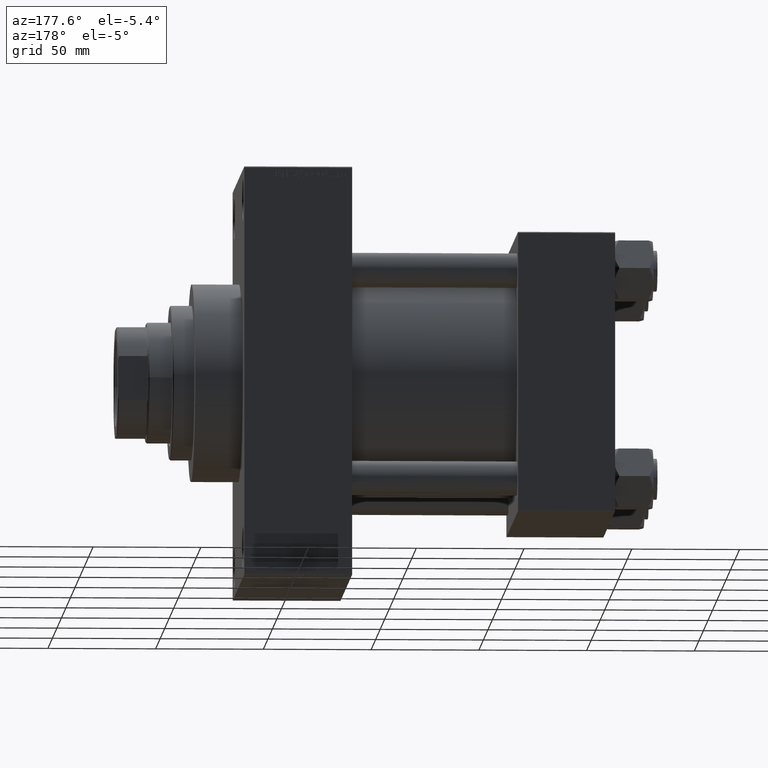
[diagram: clean part render]
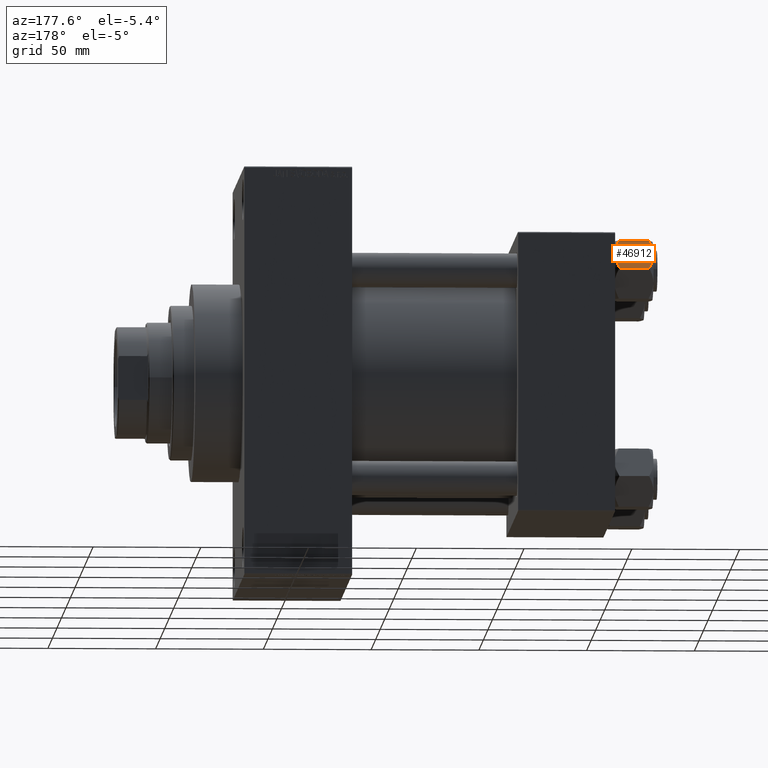
[diagram: same view with one face highlighted and labeled with its STEP entity id]
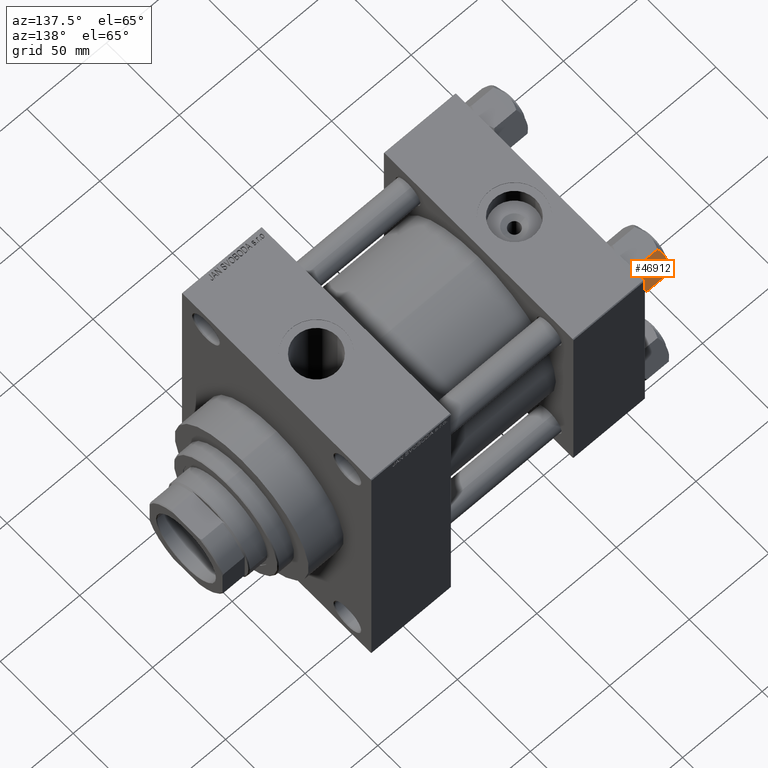
[diagram: same view with one face highlighted and labeled with its STEP entity id]
A machine part, auxiliary view. The second image highlights one B-rep face of the part: STEP entity #46912.
A second angle (auxiliary view) of the same face is appended — the face is thin or edge-on in the first view.
In plain terms, the highlighted planar face has unit normal (0, -0.866, -0.5).
Its self-contained STEP definition (entity closure, byte-faithful):
#999 = CARTESIAN_POINT ( 'NONE',  ( 15.62000000000000455, -1.379485931020374819E-15, -18.00000000000000000 ) ) ;
#1165 = B_SPLINE_CURVE_WITH_KNOTS ( 'NONE', 3,
 ( #10474, #3217, #11194, #29776, #25205, #7562, #39914, #7092 ),
 .UNSPECIFIED., .F., .F.,
 ( 4, 2, 2, 4 ),
 ( 4.472842641901889415E-07, 0.003945636373369311792, 0.005918230917921871344, 0.007890825462474430896 ),
 .UNSPECIFIED. ) ;
#2444 = ORIENTED_EDGE ( 'NONE', *, *, #21479, .F. ) ;
#2679 = FACE_OUTER_BOUND ( 'NONE', #36958, .T. ) ;
#2695 = VECTOR ( 'NONE', #24850, 1000.000000000000114 ) ;
#3041 = CARTESIAN_POINT ( 'NONE',  ( 9.439480280627259745, -10.70497417113492666, -17.26828031537187869 ) ) ;
#3077 = CARTESIAN_POINT ( 'NONE',  ( 15.62000000000000455, -1.379485931020374819E-15, -1.999999999999998224 ) ) ;
#3217 = CARTESIAN_POINT ( 'NONE',  ( 14.92760668674625535, -1.199260397376455067, -16.58801072835992585 ) ) ;
#3822 = CARTESIAN_POINT ( 'NONE',  ( 11.38181071908714515, -7.340759166634874155, 7.741881137904304113E-16 ) ) ;
#4502 = EDGE_CURVE ( 'NONE', #23682, #36595, #29206, .T. ) ;
#4707 = VERTEX_POINT ( 'NONE', #4918 ) ;
#4918 = CARTESIAN_POINT ( 'NONE',  ( 7.810000000000002274, -13.52731680711293372, -16.00000000000000000 ) ) ;
#6608 = CARTESIAN_POINT ( 'NONE',  ( 14.30591678195076355, -2.276058899034900662, -0.9473872146228133895 ) ) ;
#7092 = CARTESIAN_POINT ( 'NONE',  ( 11.71500000000000341, -6.763658403556471299, -18.00000000000000000 ) ) ;
#7321 = CARTESIAN_POINT ( 'NONE',  ( 15.62000000000000455, -1.379485931020374819E-15, -1.999999999999998224 ) ) ;
#7562 = CARTESIAN_POINT ( 'NONE',  ( 12.38621571200405569, -5.601078687526932498, -17.94910618364698252 ) ) ;
#7788 = LINE ( 'NONE', #7321, #7874 ) ;
#7874 = VECTOR ( 'NONE', #22046, 1000.000000000000114 ) ;
#9008 = CARTESIAN_POINT ( 'NONE',  ( 11.71500000000000341, -6.763658403556471299, -18.00000000000000000 ) ) ;
#9494 = AXIS2_PLACEMENT_3D ( 'NONE', #28280, #39365, #47336 ) ;
#9514 = CARTESIAN_POINT ( 'NONE',  ( 12.37702203890362540, -5.617002596445055396, 1.097754699641572845E-15 ) ) ;
#9751 = CARTESIAN_POINT ( 'NONE',  ( 13.99051971937274352, -2.822342635978011938, -0.7317196846281139866 ) ) ;
#10047 = VECTOR ( 'NONE', #22850, 1000.000000000000114 ) ;
#10285 = EDGE_CURVE ( 'NONE', #15701, #25287, #7788, .T. ) ;
#10471 = CARTESIAN_POINT ( 'NONE',  ( 13.02784502466562699, -4.489744118371590709, -0.1971866459924545845 ) ) ;
#10474 = CARTESIAN_POINT ( 'NONE',  ( 15.52647173767732980, -0.1619957022865074481, -16.00000000000000000 ) ) ;
#10826 = ORIENTED_EDGE ( 'NONE', *, *, #15098, .F. ) ;
#11194 = CARTESIAN_POINT ( 'NONE',  ( 14.31545111198821729, -2.259544954993898624, -17.08577173959729834 ) ) ;
#11800 = DIRECTION ( 'NONE',  ( -0.000000000000000000, -0.000000000000000000, 1.000000000000000000 ) ) ;
#14633 = CARTESIAN_POINT ( 'NONE',  ( 7.903528262322674358, -13.36532110482643176, -16.00000000000000000 ) ) ;
#14826 = LINE ( 'NONE', #23436, #46941 ) ;
#15098 = EDGE_CURVE ( 'NONE', #25287, #46596, #16040, .T. ) ;
#15528 = ORIENTED_EDGE ( 'NONE', *, *, #10285, .F. ) ;
#15696 = VERTEX_POINT ( 'NONE', #17250 ) ;
#15701 = VERTEX_POINT ( 'NONE', #39929 ) ;
#16040 = B_SPLINE_CURVE_WITH_KNOTS ( 'NONE', 3,
 ( #29181, #33264, #21464, #32311, #47051, #36417, #3822, #17836 ),
 .UNSPECIFIED., .F., .F.,
 ( 4, 2, 2, 4 ),
 ( 4.472842641876105202E-07, 0.003945636373369308322, 0.005918230917921867007, 0.007890825462474425692 ),
 .UNSPECIFIED. ) ;
#17250 = CARTESIAN_POINT ( 'NONE',  ( 15.52647173767732980, -0.1619957022865074481, -16.00000000000000000 ) ) ;
#17836 = CARTESIAN_POINT ( 'NONE',  ( 11.71500000000000341, -6.763658403556471299, 0.000000000000000000 ) ) ;
#18190 = CARTESIAN_POINT ( 'NONE',  ( 15.52647173767732980, -0.1619957022865074481, -2.000000000000000000 ) ) ;
#21464 = CARTESIAN_POINT ( 'NONE',  ( 9.114548888011784200, -11.26777185211904353, -0.9142282604026938930 ) ) ;
#21479 = EDGE_CURVE ( 'NONE', #28767, #15696, #28702, .T. ) ;
#21643 = CARTESIAN_POINT ( 'NONE',  ( 8.506059550806615022, -12.32170630002230638, -16.56553707812499709 ) ) ;
#21743 = CARTESIAN_POINT ( 'NONE',  ( 7.903528262322674358, -13.36532110482643176, -16.00000000000000000 ) ) ;
#22046 = DIRECTION ( 'NONE',  ( 0.5000000000000002220, 0.8660254037844384856, -0.000000000000000000 ) ) ;
#22850 = DIRECTION ( 'NONE',  ( 0.5000000000000002220, 0.8660254037844384856, -0.000000000000000000 ) ) ;
#23223 = EDGE_CURVE ( 'NONE', #4707, #15701, #37399, .T. ) ;
#23436 = CARTESIAN_POINT ( 'NONE',  ( 15.62000000000000455, -1.379485931020374819E-15, -16.00000000000000000 ) ) ;
#23506 = ORIENTED_EDGE ( 'NONE', *, *, #37232, .F. ) ;
#23682 = VERTEX_POINT ( 'NONE', #39462 ) ;
#23821 = CARTESIAN_POINT ( 'NONE',  ( 11.71500000000000341, -6.763658403556471299, 0.000000000000000000 ) ) ;
#24773 = B_SPLINE_CURVE_WITH_KNOTS ( 'NONE', 3,
 ( #42585, #9514, #10471, #9751, #6608, #43295, #25203, #18190 ),
 .UNSPECIFIED., .F., .F.,
 ( 4, 2, 2, 4 ),
 ( 0.007890825462474425692, 0.01181022244528553977, 0.01376992093669109768, 0.01572961942809665559 ),
 .UNSPECIFIED. ) ;
#24850 = DIRECTION ( 'NONE',  ( -0.5000000000000002220, -0.8660254037844384856, 0.000000000000000000 ) ) ;
#25203 = CARTESIAN_POINT ( 'NONE',  ( 15.22736220980736022, -0.6800686015852294153, -1.706311779141445495 ) ) ;
#25205 = CARTESIAN_POINT ( 'NONE',  ( 13.04337073483127973, -4.462852799541088267, -17.75691532989870325 ) ) ;
#25267 = CARTESIAN_POINT ( 'NONE',  ( 11.71500000000000341, -6.763658403556471299, -18.00000000000000000 ) ) ;
#25287 = VERTEX_POINT ( 'NONE', #41919 ) ;
#25981 = ORIENTED_EDGE ( 'NONE', *, *, #29924, .F. ) ;
#28280 = CARTESIAN_POINT ( 'NONE',  ( 15.62000000000000455, -1.379485931020374819E-15, -18.00000000000000000 ) ) ;
#28664 = EDGE_CURVE ( 'NONE', #15696, #31263, #1165, .T. ) ;
#28702 = LINE ( 'NONE', #42713, #2695 ) ;
#28767 = VERTEX_POINT ( 'NONE', #30003 ) ;
#28889 = CARTESIAN_POINT ( 'NONE',  ( 9.124083218049241495, -11.25125790807804016, -17.05261278537718539 ) ) ;
#29181 = CARTESIAN_POINT ( 'NONE',  ( 7.903528262322674358, -13.36532110482643176, -2.000000000000000000 ) ) ;
#29206 = LINE ( 'NONE', #43925, #10047 ) ;
#29469 = EDGE_CURVE ( 'NONE', #31263, #46920, #32806, .T. ) ;
#29776 = CARTESIAN_POINT ( 'NONE',  ( 13.36540581434587516, -3.905071680002325962, -17.61639331488793303 ) ) ;
#29924 = EDGE_CURVE ( 'NONE', #46920, #4707, #14826, .T. ) ;
#30003 = CARTESIAN_POINT ( 'NONE',  ( 15.62000000000000455, -1.379485931020374819E-15, -16.00000000000000000 ) ) ;
#30459 = LINE ( 'NONE', #999, #47256 ) ;
#31263 = VERTEX_POINT ( 'NONE', #9008 ) ;
#31920 = ORIENTED_EDGE ( 'NONE', *, *, #23223, .F. ) ;
#32311 = CARTESIAN_POINT ( 'NONE',  ( 10.06459418565412456, -9.622245127110611307, -0.3836066851120584209 ) ) ;
#32488 = CARTESIAN_POINT ( 'NONE',  ( 11.05297796109637964, -7.910314210667883650, -18.00000000000000000 ) ) ;
#32806 = B_SPLINE_CURVE_WITH_KNOTS ( 'NONE', 3,
 ( #25267, #32488, #39746, #3041, #28889, #21643, #47469, #14633 ),
 .UNSPECIFIED., .F., .F.,
 ( 4, 2, 2, 4 ),
 ( 0.007890825462474430896, 0.01181022244528554324, 0.01376992093669110115, 0.01572961942809665906 ),
 .UNSPECIFIED. ) ;
#33070 = PLANE ( 'NONE',  #9494 ) ;
#33264 = CARTESIAN_POINT ( 'NONE',  ( 8.502393313253756801, -12.32805640973649197, -1.411989271640069044 ) ) ;
#33527 = CARTESIAN_POINT ( 'NONE',  ( 7.810000000000002274, -13.52731680711293372, -18.00000000000000000 ) ) ;
#36417 = CARTESIAN_POINT ( 'NONE',  ( 11.04378428799594936, -7.926238119586006547, -0.05089381635301404999 ) ) ;
#36595 = VERTEX_POINT ( 'NONE', #3077 ) ;
#36680 = ORIENTED_EDGE ( 'NONE', *, *, #29469, .F. ) ;
#36958 = EDGE_LOOP ( 'NONE', ( #2444, #37918, #41637, #23506, #10826, #15528, #31920, #25981, #36680, #38453 ) ) ;
#37232 = EDGE_CURVE ( 'NONE', #46596, #23682, #24773, .T. ) ;
#37399 = LINE ( 'NONE', #33527, #42870 ) ;
#37918 = ORIENTED_EDGE ( 'NONE', *, *, #46029, .T. ) ;
#38453 = ORIENTED_EDGE ( 'NONE', *, *, #28664, .F. ) ;
#39365 = DIRECTION ( 'NONE',  ( -0.8660254037844385966, 0.5000000000000003331, 0.000000000000000000 ) ) ;
#39462 = CARTESIAN_POINT ( 'NONE',  ( 15.52647173767732980, -0.1619957022865074481, -2.000000000000000000 ) ) ;
#39746 = CARTESIAN_POINT ( 'NONE',  ( 10.40215497533437450, -9.037572688741349225, -17.80281335400754372 ) ) ;
#39914 = CARTESIAN_POINT ( 'NONE',  ( 12.04818928091285279, -6.186557640478066666, -17.99999999999999645 ) ) ;
#39929 = CARTESIAN_POINT ( 'NONE',  ( 7.810000000000002274, -13.52731680711293372, -1.999999999999998224 ) ) ;
#41637 = ORIENTED_EDGE ( 'NONE', *, *, #4502, .F. ) ;
#41919 = CARTESIAN_POINT ( 'NONE',  ( 7.903528262322674358, -13.36532110482643176, -2.000000000000000000 ) ) ;
#42585 = CARTESIAN_POINT ( 'NONE',  ( 11.71500000000000341, -6.763658403556471299, 0.000000000000000000 ) ) ;
#42713 = CARTESIAN_POINT ( 'NONE',  ( 15.62000000000000455, -1.379485931020374819E-15, -16.00000000000000000 ) ) ;
#42870 = VECTOR ( 'NONE', #11800, 1000.000000000000000 ) ;
#43295 = CARTESIAN_POINT ( 'NONE',  ( 14.92394044919338292, -1.205610507090636219, -1.434462921875003349 ) ) ;
#43925 = CARTESIAN_POINT ( 'NONE',  ( 15.62000000000000455, -1.379485931020374819E-15, -1.999999999999998224 ) ) ;
#44275 = DIRECTION ( 'NONE',  ( -0.5000000000000002220, -0.8660254037844384856, 0.000000000000000000 ) ) ;
#44713 = DIRECTION ( 'NONE',  ( -0.000000000000000000, -0.000000000000000000, 1.000000000000000000 ) ) ;
#46029 = EDGE_CURVE ( 'NONE', #28767, #36595, #30459, .T. ) ;
#46596 = VERTEX_POINT ( 'NONE', #23821 ) ;
#46912 = ADVANCED_FACE ( 'NONE', ( #2679 ), #33070, .F. ) ;
#46920 = VERTEX_POINT ( 'NONE', #21743 ) ;
#46941 = VECTOR ( 'NONE', #44275, 1000.000000000000114 ) ;
#47051 = CARTESIAN_POINT ( 'NONE',  ( 10.38662926516871998, -9.064464007571853443, -0.2430846701012968625 ) ) ;
#47256 = VECTOR ( 'NONE', #44713, 1000.000000000000000 ) ;
#47336 = DIRECTION ( 'NONE',  ( -0.5000000000000002220, -0.8660254037844384856, 0.000000000000000000 ) ) ;
#47469 = CARTESIAN_POINT ( 'NONE',  ( 8.202637790192644829, -12.84724820552770908, -16.29368822085855228 ) ) ;